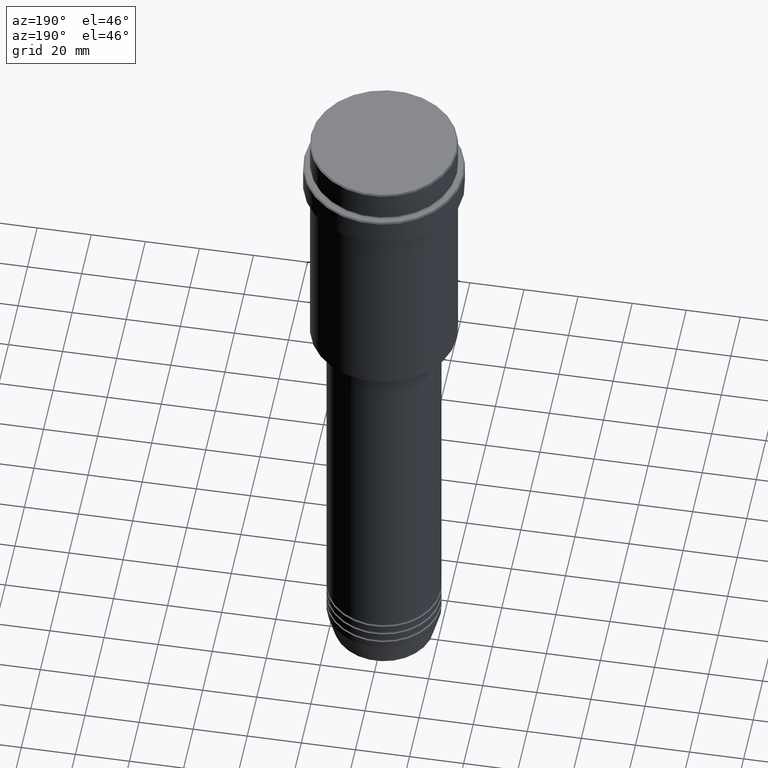
[diagram: clean part render]
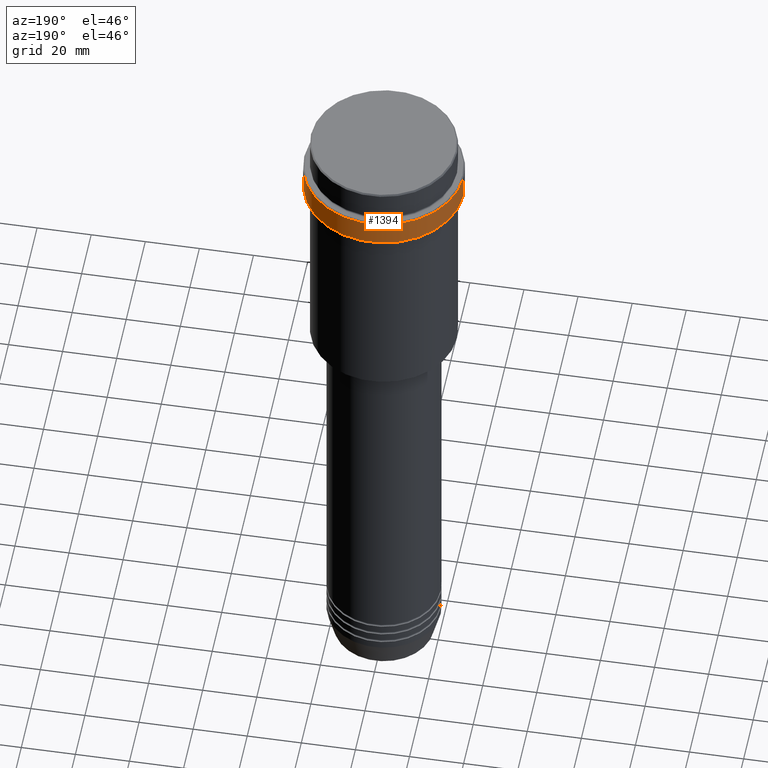
[diagram: same view with one face highlighted and labeled with its STEP entity id]
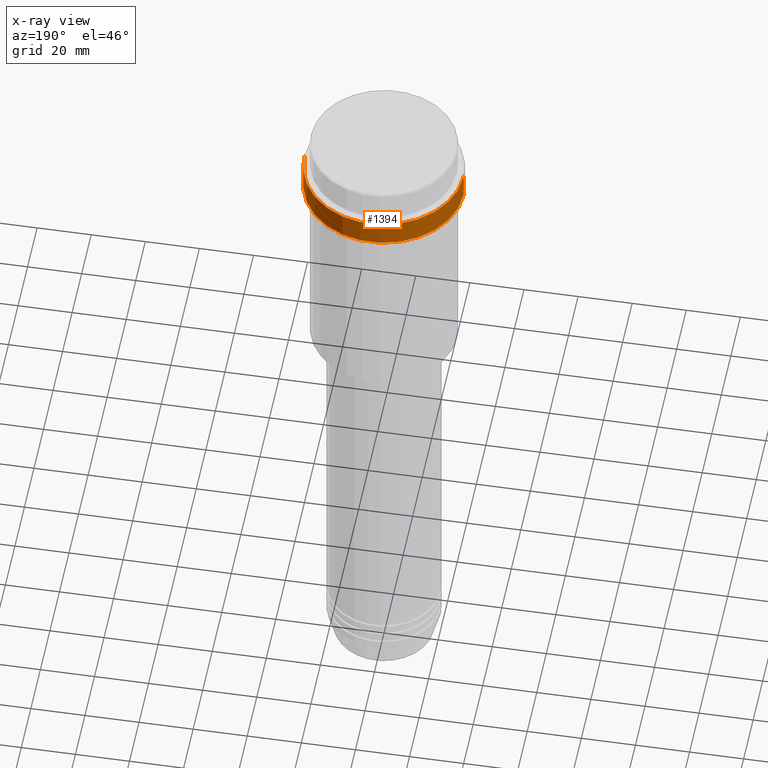
[diagram: x-ray of the same camera — body ghosted, the highlighted face saturated]
A machine part, auxiliary view. The second image highlights one B-rep face of the part: STEP entity #1394.
The next image is the same camera in x-ray: the body ghosted, the highlighted face saturated — about 0% of this face is hidden behind the body in this view.
In plain terms, the highlighted cylindrical surface (partial cylindrical patch) has radius 29.5 mm, axis along (-0, -0, 1).
Its self-contained STEP definition (entity closure, byte-faithful):
#6 = EDGE_CURVE ( 'NONE', #823, #352, #912, .T. ) ;
#27 = DIRECTION ( 'NONE',  ( 0.000000000000000000, 0.000000000000000000, -1.000000000000000000 ) ) ;
#32 = DIRECTION ( 'NONE',  ( 1.000000000000000000, 0.000000000000000000, 0.000000000000000000 ) ) ;
#78 = VECTOR ( 'NONE', #1352, 1000.000000000000000 ) ;
#79 = DIRECTION ( 'NONE',  ( -0.000000000000000000, -0.000000000000000000, 1.000000000000000000 ) ) ;
#80 = CARTESIAN_POINT ( 'NONE',  ( 0.000000000000000000, 0.000000000000000000, 0.000000000000000000 ) ) ;
#105 = AXIS2_PLACEMENT_3D ( 'NONE', #80, #726, #1165 ) ;
#136 = EDGE_CURVE ( 'NONE', #319, #951, #1155, .T. ) ;
#151 = CARTESIAN_POINT ( 'NONE',  ( 29.49999999999999645, 0.000000000000000000, -22.00000000000000711 ) ) ;
#319 = VERTEX_POINT ( 'NONE', #151 ) ;
#337 = DIRECTION ( 'NONE',  ( 1.000000000000000000, 0.000000000000000000, 0.000000000000000000 ) ) ;
#352 = VERTEX_POINT ( 'NONE', #1013 ) ;
#402 = ORIENTED_EDGE ( 'NONE', *, *, #1276, .T. ) ;
#425 = ORIENTED_EDGE ( 'NONE', *, *, #6, .T. ) ;
#591 = CARTESIAN_POINT ( 'NONE',  ( -29.50000000000000000, 3.612708057484691604E-15, 0.000000000000000000 ) ) ;
#710 = CARTESIAN_POINT ( 'NONE',  ( 29.50000000000000000, 0.000000000000000000, 0.000000000000000000 ) ) ;
#726 = DIRECTION ( 'NONE',  ( -0.000000000000000000, -0.000000000000000000, 1.000000000000000000 ) ) ;
#787 = CARTESIAN_POINT ( 'NONE',  ( -29.49999999999999645, 3.612708057484690815E-15, -22.00000000000000711 ) ) ;
#791 = AXIS2_PLACEMENT_3D ( 'NONE', #1123, #27, #32 ) ;
#823 = VERTEX_POINT ( 'NONE', #787 ) ;
#884 = CARTESIAN_POINT ( 'NONE',  ( 0.000000000000000000, 0.000000000000000000, -22.00000000000000711 ) ) ;
#912 = LINE ( 'NONE', #591, #78 ) ;
#951 = VERTEX_POINT ( 'NONE', #1246 ) ;
#1013 = CARTESIAN_POINT ( 'NONE',  ( -29.50000000000000000, 3.612708057484691604E-15, -12.50000000000003197 ) ) ;
#1040 = CYLINDRICAL_SURFACE ( 'NONE', #105, 29.50000000000000000 ) ;
#1113 = VECTOR ( 'NONE', #79, 1000.000000000000000 ) ;
#1123 = CARTESIAN_POINT ( 'NONE',  ( 0.000000000000000000, 0.000000000000000000, -12.50000000000003197 ) ) ;
#1155 = LINE ( 'NONE', #710, #1113 ) ;
#1165 = DIRECTION ( 'NONE',  ( 1.000000000000000000, 0.000000000000000000, 0.000000000000000000 ) ) ;
#1187 = EDGE_CURVE ( 'NONE', #319, #823, #1199, .T. ) ;
#1199 = CIRCLE ( 'NONE', #1226, 29.49999999999999645 ) ;
#1226 = AXIS2_PLACEMENT_3D ( 'NONE', #884, #1321, #337 ) ;
#1227 = CIRCLE ( 'NONE', #791, 29.50000000000000000 ) ;
#1243 = ORIENTED_EDGE ( 'NONE', *, *, #136, .F. ) ;
#1246 = CARTESIAN_POINT ( 'NONE',  ( 29.50000000000000000, 0.000000000000000000, -12.50000000000003197 ) ) ;
#1276 = EDGE_CURVE ( 'NONE', #352, #951, #1227, .T. ) ;
#1321 = DIRECTION ( 'NONE',  ( -0.000000000000000000, -0.000000000000000000, 1.000000000000000000 ) ) ;
#1325 = ORIENTED_EDGE ( 'NONE', *, *, #1187, .T. ) ;
#1352 = DIRECTION ( 'NONE',  ( -0.000000000000000000, -0.000000000000000000, 1.000000000000000000 ) ) ;
#1391 = FACE_OUTER_BOUND ( 'NONE', #1392, .T. ) ;
#1392 = EDGE_LOOP ( 'NONE', ( #1325, #425, #402, #1243 ) ) ;
#1394 = ADVANCED_FACE ( 'NONE', ( #1391 ), #1040, .T. ) ;